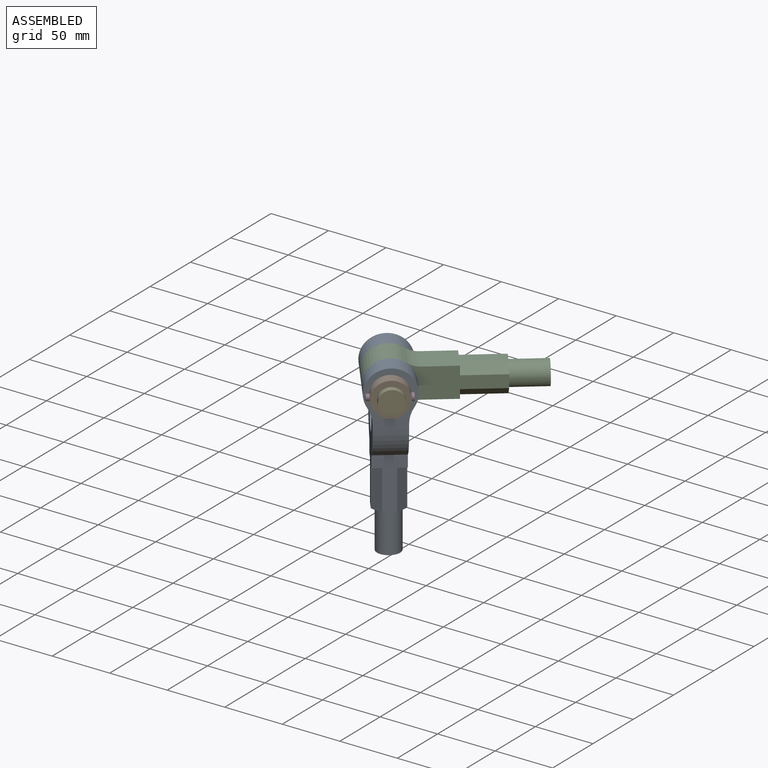
[diagram: assembled view]
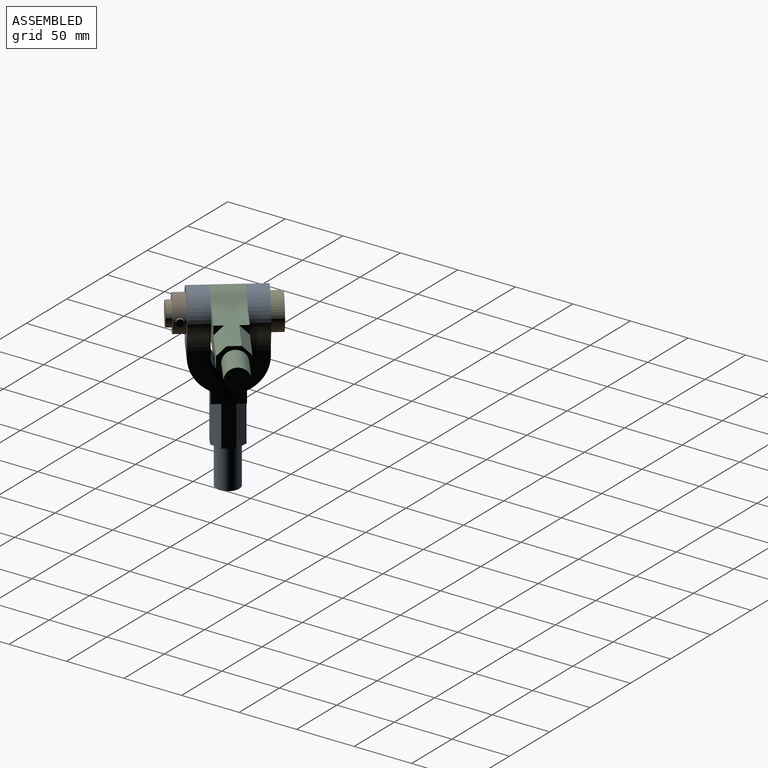
[diagram: assembled view, second angle]
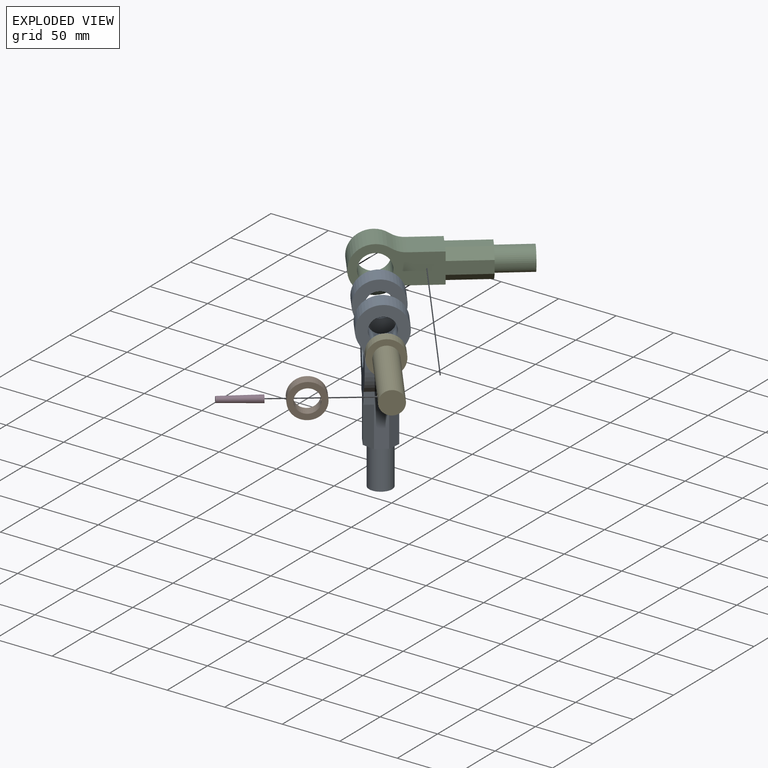
[diagram: exploded view]
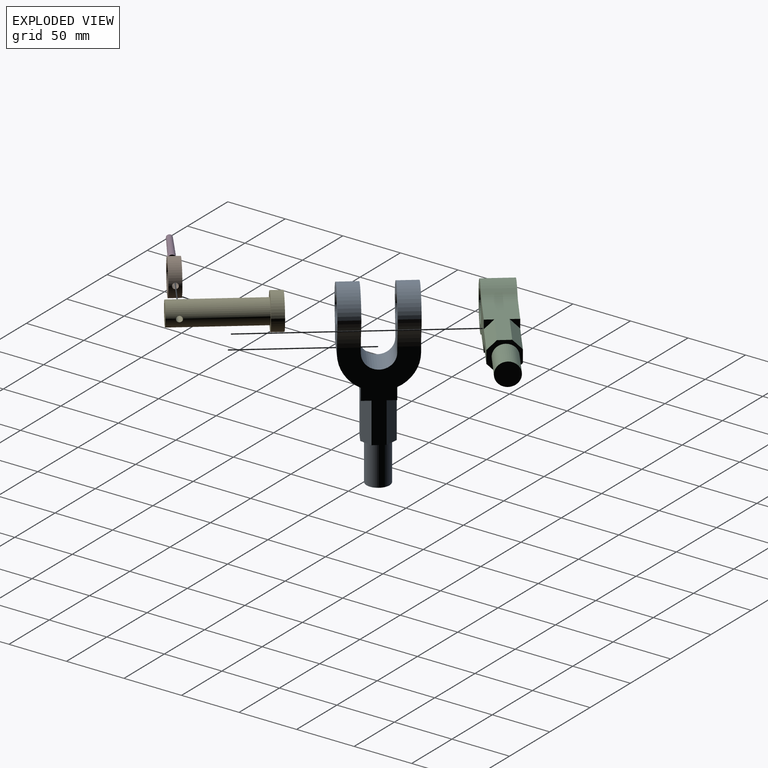
[diagram: exploded view, second angle]
ASSEMBLY  parts=5 mates=4
PART A: 30 faces, bbox 40x60x156 mm
  f0: plane 7.62x7.62mm, normal (0,0,-1), area 29mm2, adj f6,f19,f26
  f1: plane 7.62x7.62mm, normal (0,0,-1), area 29mm2, adj f5,f19,f25
  f2: plane 7.62x7.62mm, normal (0,0,-1), area 29mm2, adj f5,f21,f24
  f3: plane 7.62x7.62mm, normal (0,0,-1), area 29mm2, adj f6,f21,f23
  f4: cylinder r=25mm len=17mm, axis (0,1,0), area 240.2mm2, adj f5,f8,f11,f17
  f5: plane 76.94x60mm, normal (-1,0,0), area 1898.4mm2, adj f1,f2,f4,f10,f11,f12,f16,f17
  f6: plane 76.94x60mm, normal (1,0,0), area 1898.4mm2, adj f0,f3,f7,f10,f11,f13,f16,f17
  f7: cylinder r=25mm len=17mm, axis (0,1,0), area 240.2mm2, adj f6,f8,f11,f17
  f8: cylinder r=20mm len=40mm, axis (0,1,0), area 1452.5mm2, adj f4,f7,f11,f17
  f9: cylinder r=10.71mm len=21.43mm, axis (0,1,0), area 1144.4mm2, adj f11,f17
  f10: plane 48.81x40mm, normal (0,-1,0), area 1178.9mm2, adj f5,f6,f12,f13,f14,f15,f22
  f11: plane 48.81x40mm, normal (0,1,0), area 1178.9mm2, adj f4,f5,f6,f7,f8,f9,f20
  f12: cylinder r=25mm len=17mm, axis (0,1,0), area 240.2mm2, adj f5,f10,f14,f18
  f13: cylinder r=25mm len=17mm, axis (0,1,0), area 240.2mm2, adj f6,f10,f14,f18
  f14: cylinder r=20mm len=40mm, axis (0,1,0), area 1452.5mm2, adj f10,f12,f13,f18
  f15: cylinder r=10.71mm len=21.43mm, axis (0,1,0), area 1144.4mm2, adj f10,f18
  f16: cylinder r=13mm len=26mm, axis (1,0,0), area 1061.9mm2, adj f5,f6,f17,f18
  f17: plane 48.81x40mm, normal (0,-1,0), area 1178.9mm2, adj f4,f5,f6,f7,f8,f9,f16
  f18: plane 48.81x40mm, normal (0,1,0), area 1178.9mm2, adj f5,f6,f12,f13,f14,f15,f16
  f19: plane 45.19x26mm, normal (0,1,0), area 641.9mm2, adj f0,f1,f5,f6,f20,f25,f26,f27
  f20: cylinder r=30mm len=27.04mm, axis (1,0,0), area 875.6mm2, adj f5,f6,f11,f19
  f21: plane 45.19x26mm, normal (0,-1,0), area 641.9mm2, adj f2,f3,f5,f6,f22,f23,f24,f27
  f22: cylinder r=30mm len=27.04mm, axis (1,0,0), area 875.6mm2, adj f5,f6,f10,f21
  f23: plane 35x7.62mm, normal (0.71,-0.71,0), area 376.9mm2, adj f3,f6,f21,f27
  f24: plane 35x7.62mm, normal (-0.71,-0.71,0), area 376.9mm2, adj f2,f5,f21,f27
  f25: plane 35x7.62mm, normal (-0.71,0.71,0), area 376.9mm2, adj f1,f5,f19,f27
  f26: plane 35x7.62mm, normal (0.71,0.71,0), area 376.9mm2, adj f0,f6,f19,f27
  f27: plane 26x26mm, normal (0,0,-1), area 245.9mm2, adj f5,f6,f19,f21,f23,f24,f25,f26
  f28: cylinder r=10mm len=35mm, axis (0,0,1), area 2199.1mm2, adj f27,f29
  f29: plane 20x20mm, normal (0,0,-1), area 314.2mm2, adj f28
PART B: 6 faces, bbox 30x30x10 mm
  f0: cylinder r=10mm len=20mm, axis (0,0,-1), area 588.7mm2, adj f2,f3,f4,f5
  f1: cylinder r=15mm len=30mm, axis (0,0,-1), area 902.9mm2, adj f2,f3,f4,f5
  f2: plane 30x30mm, normal (0,0,1), area 392.7mm2, adj f0,f1
  f3: plane 30x30mm, normal (0,0,-1), area 392.7mm2, adj f0,f1
  f4: cylinder r=2.5mm len=5.32mm, axis (0,-1,0), area 79.4mm2, adj f0,f1
  f5: cylinder r=2.5mm len=5.32mm, axis (0,-1,0), area 79.4mm2, adj f0,f1
PART C: 19 faces, bbox 135.2x26x40 mm
  f0: plane 7.56x7.56mm, normal (1,0,0), area 28.6mm2, adj f7,f10,f15
  f1: plane 7.56x7.56mm, normal (1,0,0), area 28.6mm2, adj f3,f10,f14
  f2: plane 7.56x7.56mm, normal (1,0,0), area 28.6mm2, adj f3,f11,f13
  f3: plane 62.59x26mm, normal (0,0,1), area 1098mm2, adj f1,f2,f4,f10,f11,f13,f14,f16
  f4: cylinder r=20mm len=26mm, axis (0,1,0), area 312.3mm2, adj f3,f5,f10,f11
  f5: cylinder r=20mm len=40mm, axis (0,1,0), area 2258.2mm2, adj f4,f6,f10,f11
  f6: cylinder r=20mm len=26mm, axis (0,1,0), area 312.3mm2, adj f5,f7,f10,f11
  f7: plane 62.59x26mm, normal (0,0,-1), area 1098mm2, adj f0,f6,f8,f10,f11,f12,f15,f16
  f8: plane 7.56x7.56mm, normal (1,0,0), area 28.6mm2, adj f7,f11,f12
  f9: cylinder r=13mm len=26mm, axis (0,1,0), area 2123.7mm2, adj f10,f11
  f10: plane 105.2x40mm, normal (0,-1,0), area 1941.4mm2, adj f0,f1,f3,f4,f5,f6,f7,f9
  f11: plane 105.2x40mm, normal (0,1,0), area 1941.4mm2, adj f2,f3,f4,f5,f6,f7,f8,f9
  f12: plane 35x7.56mm, normal (0,0.71,-0.71), area 374.4mm2, adj f7,f8,f11,f16
  f13: plane 35x7.56mm, normal (0,0.71,0.71), area 374.4mm2, adj f2,f3,f11,f16
  f14: plane 35x7.56mm, normal (0,-0.71,0.71), area 374.4mm2, adj f1,f3,f10,f16
  f15: plane 35x7.56mm, normal (0,-0.71,-0.71), area 374.4mm2, adj f0,f7,f10,f16
  f16: plane 26x26mm, normal (1,0,0), area 247.4mm2, adj f3,f7,f10,f11,f12,f13,f14,f15
  f17: cylinder r=10mm len=30mm, axis (-1,0,0), area 1885mm2, adj f16,f18
  f18: plane 20x20mm, normal (1,0,0), area 314.2mm2, adj f17
PART D: 3 faces, bbox 6.2x35x6.2 mm
  f0: cone r=2.5mm half-angle=1deg, axis (0,-1,0), area 617mm2, adj f1,f2
  f1: plane 6.22x6.22mm, normal (0,-1,0), area 30.4mm2, adj f0
  f2: plane 5x5mm, normal (0,1,0), area 19.6mm2, adj f0
PART E: 6 faces, bbox 30x85x30 mm
  f0: cylinder r=15mm len=30mm, axis (0,1,0), area 942.5mm2, adj f1,f2
  f1: plane 30x30mm, normal (0,-1,0), area 392.7mm2, adj f0,f3
  f2: plane 30x30mm, normal (0,1,0), area 706.9mm2, adj f0
  f3: cylinder r=10mm len=75mm, axis (0,1,0), area 4672.8mm2, adj f1,f4,f5
  f4: plane 20x20mm, normal (0,-1,0), area 314.2mm2, adj f3
  f5: cylinder r=2.5mm len=20mm, axis (1,0,0), area 309.2mm2, adj f3
PLACE A rot(axis=(0,0,1),38.1deg) t=(-52.51,28.46,2.3)mm fixed
PLACE B rot(axis=(0.67,-0.32,0.67),143.6deg) t=(-34.39,4.54,29.64)mm
PLACE C rot(axis=(0,0,1),38.1deg) t=(-60.52,38.69,29.64)mm
PLACE D rot(axis=(0.67,-0.32,0.67),143.6deg) t=(-45.44,-10.46,29.8)mm
PLACE E rot(axis=(0,0.01,1),38.1deg) t=(-77.16,59.95,29.64)mm
MATE slider E.f5 <-> D.f0  axis (0.79,0.62,-0.01) through (-30.94,0.9,29.64)mm
MATE fastened A.f8 <-> C.f9  axis (-0.62,0.79,0) through (-60.52,38.69,29.64)mm
MATE revolute A.f8 <-> E.f3  axis (-0.62,0.79,0) through (-71,52.08,29.64)mm
MATE fastened E.f5 <-> B.f4  axis (0.79,0.62,-0.01) through (-38.91,-5.34,29.73)mm
